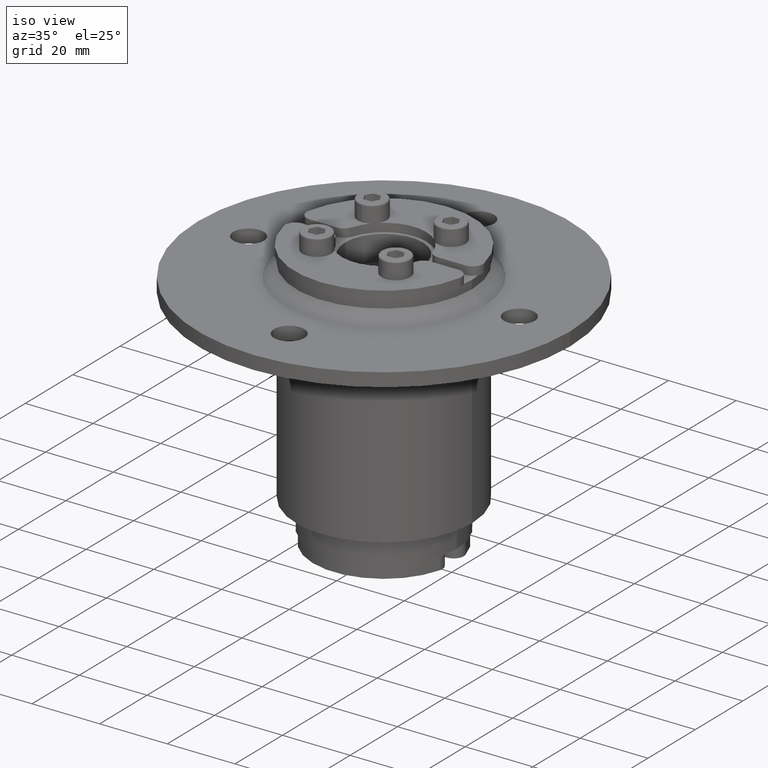
[diagram: clean part render]
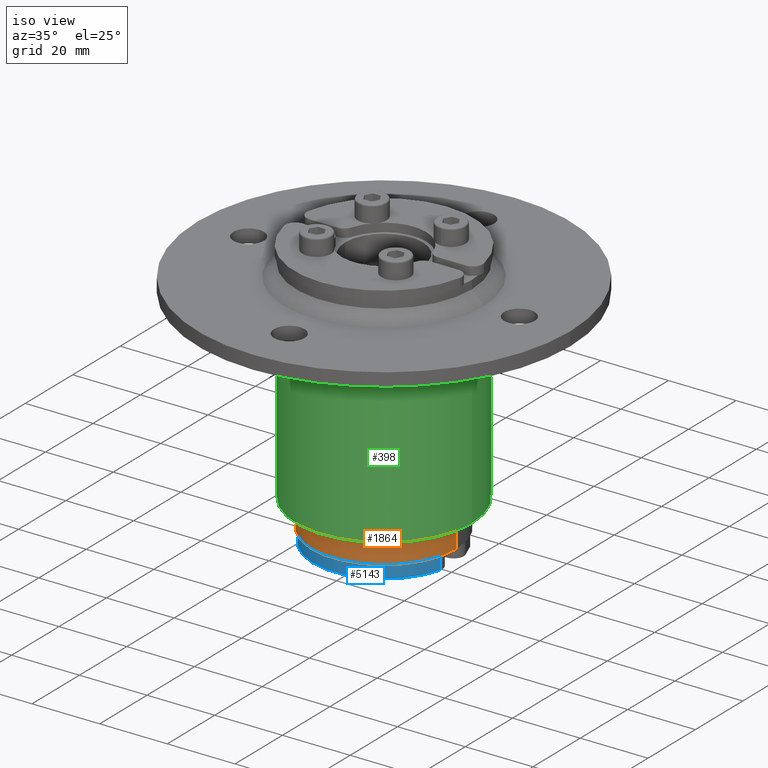
[diagram: same view with three faces highlighted in distinct colors, each labeled with its STEP entity id]
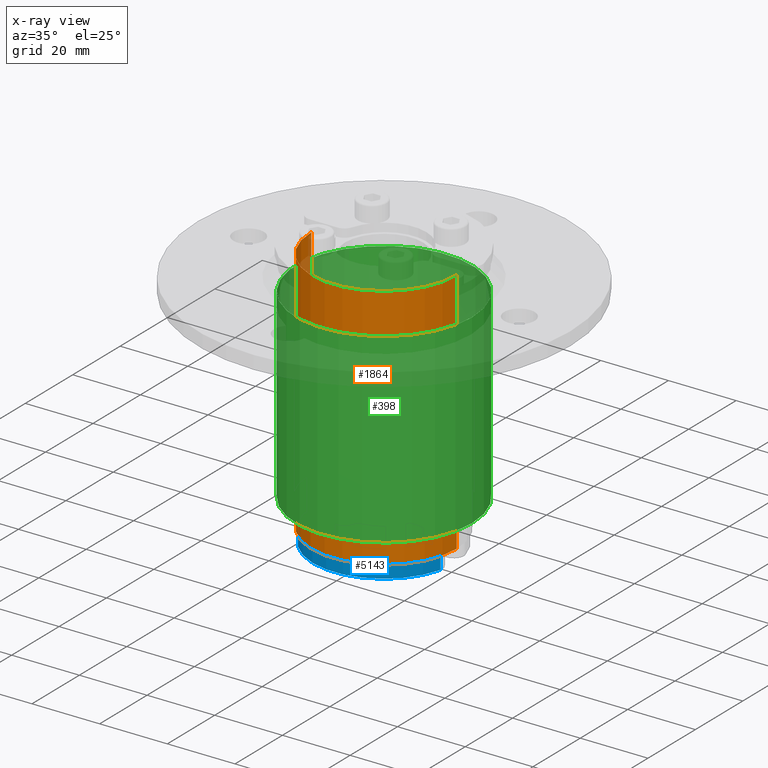
[diagram: x-ray of the same camera — body ghosted, the three highlighted faces saturated]
A machine part, iso view with three faces highlighted in distinct colors.
The next image is the same camera in x-ray (body ghosted, the three faces saturated) — at least one of them is partly hidden behind the body in this view.
Their STEP definitions:

[orange] entity #1864 — the highlighted cylindrical surface (partial cylindrical patch) has radius 21.5 mm, axis along (0, -0, 1).
#1724=CARTESIAN_POINT('',(43.697252690602397,22.442229673935365,-36.5));
#1725=VERTEX_POINT('',#1724);
#1726=CARTESIAN_POINT('',(0.697252690602397,22.442229673935369,-36.5));
#1727=VERTEX_POINT('',#1726);
#1728=CARTESIAN_POINT('',(22.197252690602397,22.442229673935365,-36.5));
#1729=DIRECTION('',(0.0,0.0,-1.0));
#1730=DIRECTION('',(-1.0,0.0,0.0));
#1731=AXIS2_PLACEMENT_3D('',#1728,#1729,#1730);
#1732=CIRCLE('',#1731,21.5);
#1733=EDGE_CURVE('',#1725,#1727,#1732,.T.);
#1772=CARTESIAN_POINT('',(0.697252690602397,22.442229673935369,36.5));
#1773=VERTEX_POINT('',#1772);
#1774=CARTESIAN_POINT('',(0.697252690602397,22.442229673935369,36.5));
#1775=DIRECTION('',(0.0,0.0,-1.0));
#1776=VECTOR('',#1775,73.0);
#1777=LINE('',#1774,#1776);
#1778=EDGE_CURVE('',#1773,#1727,#1777,.T.);
#1829=CARTESIAN_POINT('',(43.697252690602397,22.442229673935365,36.5));
#1830=VERTEX_POINT('',#1829);
#1837=CARTESIAN_POINT('',(43.697252690602397,22.442229673935365,-36.5));
#1838=DIRECTION('',(0.0,0.0,1.0));
#1839=VECTOR('',#1838,73.0);
#1840=LINE('',#1837,#1839);
#1841=EDGE_CURVE('',#1725,#1830,#1840,.T.);
#1847=CARTESIAN_POINT('',(22.197252690602397,22.442229673935365,0.0));
#1848=DIRECTION('',(0.0,0.0,1.0));
#1849=DIRECTION('',(-1.0,0.0,0.0));
#1850=AXIS2_PLACEMENT_3D('',#1847,#1848,#1849);
#1851=CYLINDRICAL_SURFACE('',#1850,21.5);
#1852=ORIENTED_EDGE('',*,*,#1841,.T.);
#1853=CARTESIAN_POINT('',(22.197252690602397,22.442229673935365,36.5));
#1854=DIRECTION('',(0.0,0.0,1.0));
#1855=DIRECTION('',(-1.0,0.0,0.0));
#1856=AXIS2_PLACEMENT_3D('',#1853,#1854,#1855);
#1857=CIRCLE('',#1856,21.5);
#1858=EDGE_CURVE('',#1773,#1830,#1857,.T.);
#1859=ORIENTED_EDGE('',*,*,#1858,.F.);
#1860=ORIENTED_EDGE('',*,*,#1778,.T.);
#1861=ORIENTED_EDGE('',*,*,#1733,.F.);
#1862=EDGE_LOOP('',(#1852,#1859,#1860,#1861));
#1863=FACE_OUTER_BOUND('',#1862,.T.);
#1864=ADVANCED_FACE('',(#1863),#1851,.T.);

[blue] entity #5143 — the highlighted cylindrical surface (partial cylindrical patch) has radius 21 mm, axis along (0, -0, 1).
#5076=CARTESIAN_POINT('',(42.623267863506172,18.576691260648349,0.0));
#5077=VERTEX_POINT('',#5076);
#5093=CARTESIAN_POINT('',(42.623267863506172,18.576691260648349,4.0));
#5094=VERTEX_POINT('',#5093);
#5102=CARTESIAN_POINT('',(42.623267863506172,18.576691260648349,0.0));
#5103=DIRECTION('',(0.0,0.0,1.0));
#5104=VECTOR('',#5103,4.0);
#5105=LINE('',#5102,#5104);
#5106=EDGE_CURVE('',#5077,#5094,#5105,.T.);
#5111=CARTESIAN_POINT('',(22.290105295917218,23.826691260648346,0.0));
#5112=DIRECTION('',(0.0,0.0,1.0));
#5113=DIRECTION('',(0.968245836551855,0.249999999999999,0.0));
#5114=AXIS2_PLACEMENT_3D('',#5111,#5112,#5113);
#5115=CYLINDRICAL_SURFACE('',#5114,21.000000000000004);
#5116=CARTESIAN_POINT('',(1.956942728328258,18.576691260648367,0.0));
#5117=VERTEX_POINT('',#5116);
#5118=CARTESIAN_POINT('',(22.290105295917218,23.826691260648346,0.0));
#5119=DIRECTION('',(0.0,0.0,-1.0));
#5120=DIRECTION('',(0.968245836551855,0.249999999999999,0.0));
#5121=AXIS2_PLACEMENT_3D('',#5118,#5119,#5120);
#5122=CIRCLE('',#5121,21.000000000000004);
#5123=EDGE_CURVE('',#5077,#5117,#5122,.T.);
#5124=ORIENTED_EDGE('',*,*,#5123,.F.);
#5125=ORIENTED_EDGE('',*,*,#5106,.T.);
#5126=CARTESIAN_POINT('',(1.956942728328257,18.576691260648367,4.0));
#5127=VERTEX_POINT('',#5126);
#5128=CARTESIAN_POINT('',(22.290105295917218,23.826691260648346,4.0));
#5129=DIRECTION('',(0.0,0.0,1.0));
#5130=DIRECTION('',(0.968245836551855,0.249999999999999,0.0));
#5131=AXIS2_PLACEMENT_3D('',#5128,#5129,#5130);
#5132=CIRCLE('',#5131,21.000000000000004);
#5133=EDGE_CURVE('',#5127,#5094,#5132,.T.);
#5134=ORIENTED_EDGE('',*,*,#5133,.F.);
#5135=CARTESIAN_POINT('',(1.956942728328258,18.576691260648367,0.0));
#5136=DIRECTION('',(0.0,0.0,1.0));
#5137=VECTOR('',#5136,4.0);
#5138=LINE('',#5135,#5137);
#5139=EDGE_CURVE('',#5117,#5127,#5138,.T.);
#5140=ORIENTED_EDGE('',*,*,#5139,.F.);
#5141=EDGE_LOOP('',(#5124,#5125,#5134,#5140));
#5142=FACE_OUTER_BOUND('',#5141,.T.);
#5143=ADVANCED_FACE('',(#5142),#5115,.T.);

[green] entity #398 — the highlighted cylindrical surface (bore or boss wall) has radius 26 mm, axis along (0, 0, -1).
#327=CARTESIAN_POINT('',(26.0,3.184082E-015,-10.0));
#328=VERTEX_POINT('',#327);
#329=CARTESIAN_POINT('',(0.0,0.0,-10.0));
#330=DIRECTION('',(0.0,0.0,-1.0));
#331=DIRECTION('',(-1.0,0.0,0.0));
#332=AXIS2_PLACEMENT_3D('',#329,#330,#331);
#333=CIRCLE('',#332,26.0);
#334=EDGE_CURVE('',#328,#328,#333,.T.);
#379=CARTESIAN_POINT('',(0.0,0.0,0.0));
#380=DIRECTION('',(0.0,0.0,-1.0));
#381=DIRECTION('',(-1.0,0.0,0.0));
#382=AXIS2_PLACEMENT_3D('',#379,#380,#381);
#383=CYLINDRICAL_SURFACE('',#382,26.0);
#384=ORIENTED_EDGE('',*,*,#334,.T.);
#385=EDGE_LOOP('',(#384));
#386=FACE_OUTER_BOUND('',#385,.T.);
#387=CARTESIAN_POINT('',(26.0,3.184082E-015,-65.0));
#388=VERTEX_POINT('',#387);
#389=CARTESIAN_POINT('',(0.0,0.0,-65.0));
#390=DIRECTION('',(0.0,0.0,-1.0));
#391=DIRECTION('',(-1.0,0.0,0.0));
#392=AXIS2_PLACEMENT_3D('',#389,#390,#391);
#393=CIRCLE('',#392,26.0);
#394=EDGE_CURVE('',#388,#388,#393,.T.);
#395=ORIENTED_EDGE('',*,*,#394,.F.);
#396=EDGE_LOOP('',(#395));
#397=FACE_BOUND('',#396,.T.);
#398=ADVANCED_FACE('',(#386,#397),#383,.T.);